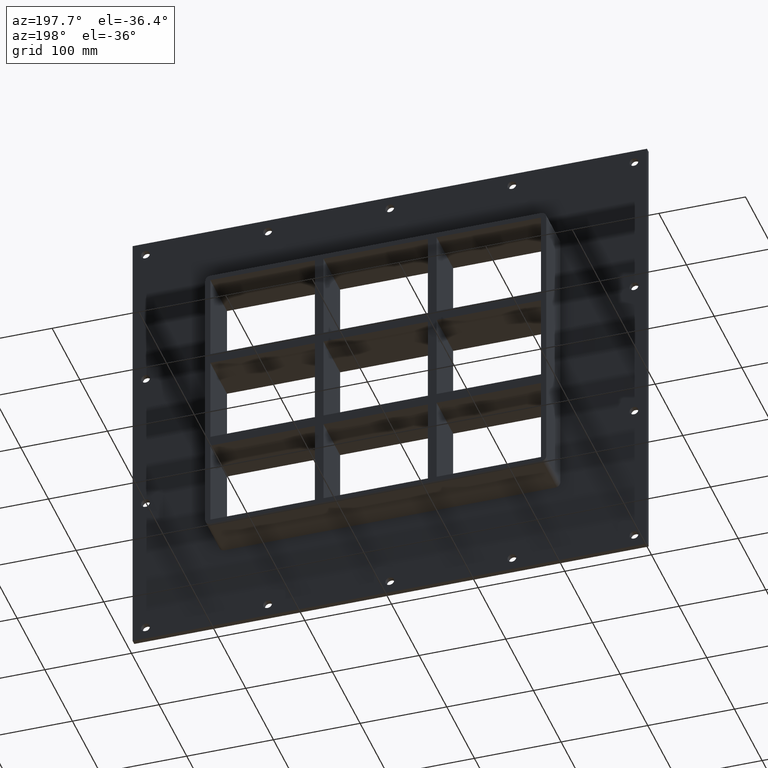
[diagram: clean part render]
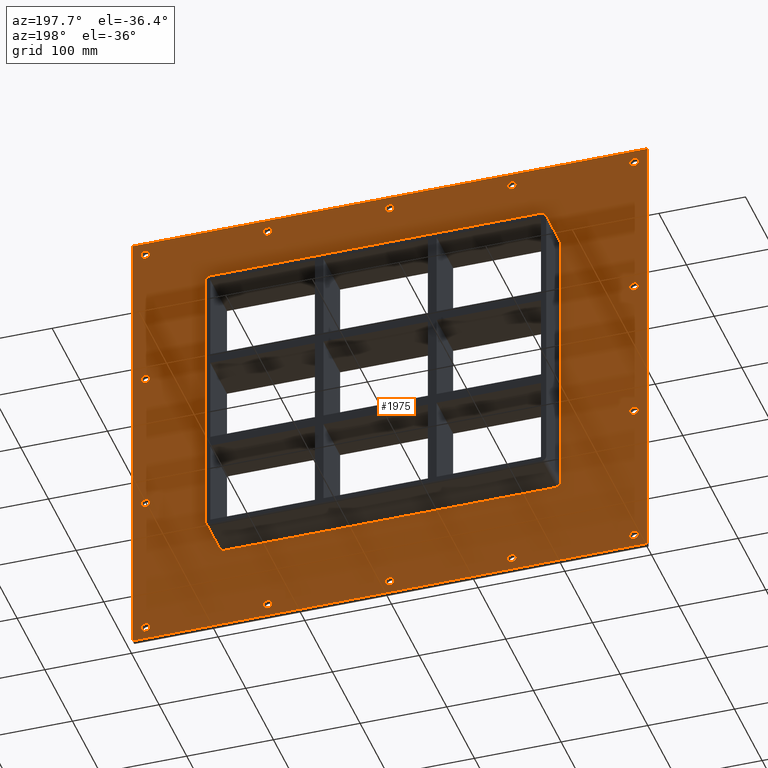
[diagram: same view with one face highlighted and labeled with its STEP entity id]
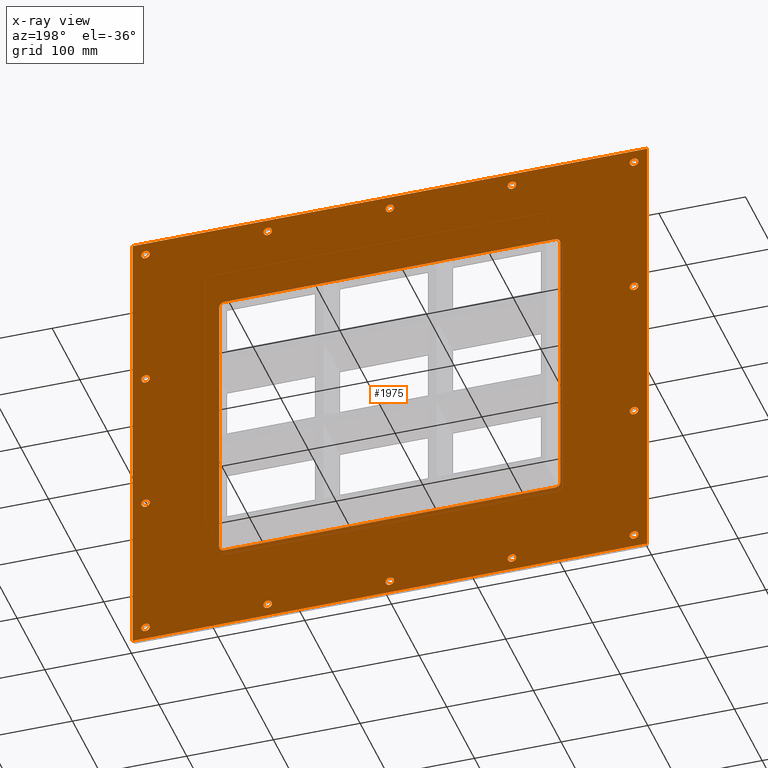
[diagram: x-ray of the same camera — body ghosted, the highlighted face saturated]
A machine part, auxiliary view. The second image highlights one B-rep face of the part: STEP entity #1975.
The next image is the same camera in x-ray: the body ghosted, the highlighted face saturated — about 0% of this face is hidden behind the body in this view.
In plain terms, the highlighted planar face has unit normal (0, 1, 0).
Its self-contained STEP definition (entity closure, byte-faithful):
#73=CARTESIAN_POINT('',(-286.75000000000017,5.999999999999943,-254.5));
#74=VERTEX_POINT('',#73);
#75=CARTESIAN_POINT('',(-281.75000000000017,5.999999999999943,-254.5));
#76=DIRECTION('',(0.0,-1.0,0.0));
#77=DIRECTION('',(1.0,0.0,0.0));
#78=AXIS2_PLACEMENT_3D('',#75,#76,#77);
#79=CIRCLE('',#78,5.0);
#80=EDGE_CURVE('',#74,#74,#79,.T.);
#101=CARTESIAN_POINT('',(276.84999999999991,5.999999999999943,-84.800000000000011));
#102=VERTEX_POINT('',#101);
#103=CARTESIAN_POINT('',(281.84999999999991,5.999999999999943,-84.800000000000011));
#104=DIRECTION('',(0.0,-1.0,0.0));
#105=DIRECTION('',(1.0,0.0,0.0));
#106=AXIS2_PLACEMENT_3D('',#103,#104,#105);
#107=CIRCLE('',#106,5.0);
#108=EDGE_CURVE('',#102,#102,#107,.T.);
#129=CARTESIAN_POINT('',(-286.75000000000017,5.999999999999943,-84.800000000000011));
#130=VERTEX_POINT('',#129);
#131=CARTESIAN_POINT('',(-281.75000000000017,5.999999999999943,-84.800000000000011));
#132=DIRECTION('',(0.0,-1.0,0.0));
#133=DIRECTION('',(1.0,0.0,0.0));
#134=AXIS2_PLACEMENT_3D('',#131,#132,#133);
#135=CIRCLE('',#134,5.0);
#136=EDGE_CURVE('',#130,#130,#135,.T.);
#157=CARTESIAN_POINT('',(276.84999999999991,5.999999999999943,84.899999999999977));
#158=VERTEX_POINT('',#157);
#159=CARTESIAN_POINT('',(281.84999999999991,5.999999999999943,84.899999999999977));
#160=DIRECTION('',(0.0,-1.0,0.0));
#161=DIRECTION('',(1.0,0.0,0.0));
#162=AXIS2_PLACEMENT_3D('',#159,#160,#161);
#163=CIRCLE('',#162,5.0);
#164=EDGE_CURVE('',#158,#158,#163,.T.);
#185=CARTESIAN_POINT('',(-286.75000000000017,5.999999999999943,84.899999999999977));
#186=VERTEX_POINT('',#185);
#187=CARTESIAN_POINT('',(-281.75000000000017,5.999999999999943,84.899999999999977));
#188=DIRECTION('',(0.0,-1.0,0.0));
#189=DIRECTION('',(1.0,0.0,0.0));
#190=AXIS2_PLACEMENT_3D('',#187,#188,#189);
#191=CIRCLE('',#190,5.0);
#192=EDGE_CURVE('',#186,#186,#191,.T.);
#213=CARTESIAN_POINT('',(-145.85000000000014,5.999999999999943,254.59999999999997));
#214=VERTEX_POINT('',#213);
#215=CARTESIAN_POINT('',(-140.85000000000014,5.999999999999943,254.59999999999997));
#216=DIRECTION('',(0.0,-1.0,0.0));
#217=DIRECTION('',(1.0,0.0,0.0));
#218=AXIS2_PLACEMENT_3D('',#215,#216,#217);
#219=CIRCLE('',#218,5.0);
#220=EDGE_CURVE('',#214,#214,#219,.T.);
#241=CARTESIAN_POINT('',(-145.85000000000014,5.999999999999943,-254.50000000000003));
#242=VERTEX_POINT('',#241);
#243=CARTESIAN_POINT('',(-140.85000000000014,5.999999999999943,-254.50000000000003));
#244=DIRECTION('',(0.0,-1.0,0.0));
#245=DIRECTION('',(1.0,0.0,0.0));
#246=AXIS2_PLACEMENT_3D('',#243,#244,#245);
#247=CIRCLE('',#246,5.0);
#248=EDGE_CURVE('',#242,#242,#247,.T.);
#269=CARTESIAN_POINT('',(-4.950000000000152,5.999999999999943,254.59999999999997));
#270=VERTEX_POINT('',#269);
#271=CARTESIAN_POINT('',(0.049999999999848,5.999999999999943,254.59999999999997));
#272=DIRECTION('',(0.0,-1.0,0.0));
#273=DIRECTION('',(1.0,0.0,0.0));
#274=AXIS2_PLACEMENT_3D('',#271,#272,#273);
#275=CIRCLE('',#274,5.0);
#276=EDGE_CURVE('',#270,#270,#275,.T.);
#297=CARTESIAN_POINT('',(-4.950000000000152,5.999999999999943,-254.50000000000003));
#298=VERTEX_POINT('',#297);
#299=CARTESIAN_POINT('',(0.049999999999848,5.999999999999943,-254.50000000000003));
#300=DIRECTION('',(0.0,-1.0,0.0));
#301=DIRECTION('',(1.0,0.0,0.0));
#302=AXIS2_PLACEMENT_3D('',#299,#300,#301);
#303=CIRCLE('',#302,5.0);
#304=EDGE_CURVE('',#298,#298,#303,.T.);
#325=CARTESIAN_POINT('',(135.94999999999987,5.999999999999943,254.59999999999997));
#326=VERTEX_POINT('',#325);
#327=CARTESIAN_POINT('',(140.94999999999987,5.999999999999943,254.59999999999997));
#328=DIRECTION('',(0.0,-1.0,0.0));
#329=DIRECTION('',(1.0,0.0,0.0));
#330=AXIS2_PLACEMENT_3D('',#327,#328,#329);
#331=CIRCLE('',#330,5.0);
#332=EDGE_CURVE('',#326,#326,#331,.T.);
#353=CARTESIAN_POINT('',(135.94999999999987,5.999999999999943,-254.50000000000003));
#354=VERTEX_POINT('',#353);
#355=CARTESIAN_POINT('',(140.94999999999987,5.999999999999943,-254.50000000000003));
#356=DIRECTION('',(0.0,-1.0,0.0));
#357=DIRECTION('',(1.0,0.0,0.0));
#358=AXIS2_PLACEMENT_3D('',#355,#356,#357);
#359=CIRCLE('',#358,5.0);
#360=EDGE_CURVE('',#354,#354,#359,.T.);
#381=CARTESIAN_POINT('',(276.84999999999991,5.999999999999943,-254.50000000000003));
#382=VERTEX_POINT('',#381);
#383=CARTESIAN_POINT('',(281.84999999999991,5.999999999999943,-254.50000000000003));
#384=DIRECTION('',(0.0,-1.0,0.0));
#385=DIRECTION('',(1.0,0.0,0.0));
#386=AXIS2_PLACEMENT_3D('',#383,#384,#385);
#387=CIRCLE('',#386,5.0);
#388=EDGE_CURVE('',#382,#382,#387,.T.);
#409=CARTESIAN_POINT('',(-286.75000000000017,5.999999999999943,254.59999999999997));
#410=VERTEX_POINT('',#409);
#411=CARTESIAN_POINT('',(-281.75000000000017,5.999999999999943,254.59999999999997));
#412=DIRECTION('',(0.0,-1.0,0.0));
#413=DIRECTION('',(1.0,0.0,0.0));
#414=AXIS2_PLACEMENT_3D('',#411,#412,#413);
#415=CIRCLE('',#414,5.0);
#416=EDGE_CURVE('',#410,#410,#415,.T.);
#437=CARTESIAN_POINT('',(276.84999999999991,5.999999999999943,254.59999999999997));
#438=VERTEX_POINT('',#437);
#439=CARTESIAN_POINT('',(281.84999999999991,5.999999999999943,254.59999999999997));
#440=DIRECTION('',(0.0,-1.0,0.0));
#441=DIRECTION('',(1.0,0.0,0.0));
#442=AXIS2_PLACEMENT_3D('',#439,#440,#441);
#443=CIRCLE('',#442,5.0);
#444=EDGE_CURVE('',#438,#438,#443,.T.);
#1824=CARTESIAN_POINT('',(-3.011572E-014,6.000000000000001,0.0));
#1825=DIRECTION('',(0.0,1.0,0.0));
#1826=DIRECTION('',(0.0,0.0,1.0));
#1827=AXIS2_PLACEMENT_3D('',#1824,#1825,#1826);
#1828=PLANE('',#1827);
#1829=CARTESIAN_POINT('',(-296.75000000000011,6.000000000000001,269.5));
#1830=VERTEX_POINT('',#1829);
#1831=CARTESIAN_POINT('',(296.75000000000011,6.000000000000001,269.5));
#1832=VERTEX_POINT('',#1831);
#1833=CARTESIAN_POINT('',(-296.75000000000011,6.000000000000001,269.5));
#1834=DIRECTION('',(1.0,0.0,0.0));
#1835=VECTOR('',#1834,593.50000000000023);
#1836=LINE('',#1833,#1835);
#1837=EDGE_CURVE('',#1830,#1832,#1836,.T.);
#1838=ORIENTED_EDGE('',*,*,#1837,.T.);
#1839=CARTESIAN_POINT('',(296.75000000000011,6.000000000000001,-269.5));
#1840=VERTEX_POINT('',#1839);
#1841=CARTESIAN_POINT('',(296.75000000000006,6.000000000000001,269.5));
#1842=DIRECTION('',(0.0,0.0,-1.0));
#1843=VECTOR('',#1842,539.0);
#1844=LINE('',#1841,#1843);
#1845=EDGE_CURVE('',#1832,#1840,#1844,.T.);
#1846=ORIENTED_EDGE('',*,*,#1845,.T.);
#1847=CARTESIAN_POINT('',(-296.75000000000011,6.000000000000001,-269.5));
#1848=VERTEX_POINT('',#1847);
#1849=CARTESIAN_POINT('',(296.75000000000006,6.000000000000001,-269.5));
#1850=DIRECTION('',(-1.0,0.0,0.0));
#1851=VECTOR('',#1850,593.50000000000023);
#1852=LINE('',#1849,#1851);
#1853=EDGE_CURVE('',#1840,#1848,#1852,.T.);
#1854=ORIENTED_EDGE('',*,*,#1853,.T.);
#1855=CARTESIAN_POINT('',(-296.75000000000011,6.000000000000001,-269.5));
#1856=DIRECTION('',(0.0,0.0,1.0));
#1857=VECTOR('',#1856,539.0);
#1858=LINE('',#1855,#1857);
#1859=EDGE_CURVE('',#1848,#1830,#1858,.T.);
#1860=ORIENTED_EDGE('',*,*,#1859,.T.);
#1861=EDGE_LOOP('',(#1838,#1846,#1854,#1860));
#1862=FACE_OUTER_BOUND('',#1861,.T.);
#1863=ORIENTED_EDGE('',*,*,#80,.T.);
#1864=EDGE_LOOP('',(#1863));
#1865=FACE_BOUND('',#1864,.T.);
#1866=ORIENTED_EDGE('',*,*,#108,.T.);
#1867=EDGE_LOOP('',(#1866));
#1868=FACE_BOUND('',#1867,.T.);
#1869=ORIENTED_EDGE('',*,*,#136,.T.);
#1870=EDGE_LOOP('',(#1869));
#1871=FACE_BOUND('',#1870,.T.);
#1872=ORIENTED_EDGE('',*,*,#164,.T.);
#1873=EDGE_LOOP('',(#1872));
#1874=FACE_BOUND('',#1873,.T.);
#1875=ORIENTED_EDGE('',*,*,#192,.T.);
#1876=EDGE_LOOP('',(#1875));
#1877=FACE_BOUND('',#1876,.T.);
#1878=ORIENTED_EDGE('',*,*,#220,.T.);
#1879=EDGE_LOOP('',(#1878));
#1880=FACE_BOUND('',#1879,.T.);
#1881=ORIENTED_EDGE('',*,*,#248,.T.);
#1882=EDGE_LOOP('',(#1881));
#1883=FACE_BOUND('',#1882,.T.);
#1884=ORIENTED_EDGE('',*,*,#276,.T.);
#1885=EDGE_LOOP('',(#1884));
#1886=FACE_BOUND('',#1885,.T.);
#1887=ORIENTED_EDGE('',*,*,#304,.T.);
#1888=EDGE_LOOP('',(#1887));
#1889=FACE_BOUND('',#1888,.T.);
#1890=ORIENTED_EDGE('',*,*,#332,.T.);
#1891=EDGE_LOOP('',(#1890));
#1892=FACE_BOUND('',#1891,.T.);
#1893=ORIENTED_EDGE('',*,*,#360,.T.);
#1894=EDGE_LOOP('',(#1893));
#1895=FACE_BOUND('',#1894,.T.);
#1896=ORIENTED_EDGE('',*,*,#388,.T.);
#1897=EDGE_LOOP('',(#1896));
#1898=FACE_BOUND('',#1897,.T.);
#1899=ORIENTED_EDGE('',*,*,#416,.T.);
#1900=EDGE_LOOP('',(#1899));
#1901=FACE_BOUND('',#1900,.T.);
#1902=ORIENTED_EDGE('',*,*,#444,.T.);
#1903=EDGE_LOOP('',(#1902));
#1904=FACE_BOUND('',#1903,.T.);
#1905=CARTESIAN_POINT('',(-190.75000000000003,6.000000000000001,-169.50000000000003));
#1906=VERTEX_POINT('',#1905);
#1907=CARTESIAN_POINT('',(-196.75000000000006,6.000000000000001,-163.5));
#1908=VERTEX_POINT('',#1907);
#1909=CARTESIAN_POINT('',(-190.75000000000003,6.000000000000001,-163.5));
#1910=DIRECTION('',(0.0,1.0,0.0));
#1911=DIRECTION('',(-0.707106781186548,0.0,-0.707106781186548));
#1912=AXIS2_PLACEMENT_3D('',#1909,#1910,#1911);
#1913=CIRCLE('',#1912,6.000000000000002);
#1914=EDGE_CURVE('',#1906,#1908,#1913,.T.);
#1915=ORIENTED_EDGE('',*,*,#1914,.F.);
#1916=CARTESIAN_POINT('',(190.75000000000003,6.000000000000001,-169.50000000000003));
#1917=VERTEX_POINT('',#1916);
#1918=CARTESIAN_POINT('',(190.75000000000003,6.000000000000001,-169.50000000000003));
#1919=DIRECTION('',(-1.0,0.0,0.0));
#1920=VECTOR('',#1919,381.5);
#1921=LINE('',#1918,#1920);
#1922=EDGE_CURVE('',#1917,#1906,#1921,.T.);
#1923=ORIENTED_EDGE('',*,*,#1922,.F.);
#1924=CARTESIAN_POINT('',(196.75000000000006,6.000000000000001,-163.5));
#1925=VERTEX_POINT('',#1924);
#1926=CARTESIAN_POINT('',(190.75000000000003,6.000000000000001,-163.5));
#1927=DIRECTION('',(0.0,1.0,0.0));
#1928=DIRECTION('',(0.707106781186548,0.0,-0.707106781186548));
#1929=AXIS2_PLACEMENT_3D('',#1926,#1927,#1928);
#1930=CIRCLE('',#1929,6.000000000000002);
#1931=EDGE_CURVE('',#1925,#1917,#1930,.T.);
#1932=ORIENTED_EDGE('',*,*,#1931,.F.);
#1933=CARTESIAN_POINT('',(196.75000000000006,6.000000000000001,163.5));
#1934=VERTEX_POINT('',#1933);
#1935=CARTESIAN_POINT('',(196.75000000000006,6.000000000000001,163.5));
#1936=DIRECTION('',(0.0,0.0,-1.0));
#1937=VECTOR('',#1936,327.0);
#1938=LINE('',#1935,#1937);
#1939=EDGE_CURVE('',#1934,#1925,#1938,.T.);
#1940=ORIENTED_EDGE('',*,*,#1939,.F.);
#1941=CARTESIAN_POINT('',(190.75000000000003,6.000000000000001,169.50000000000003));
#1942=VERTEX_POINT('',#1941);
#1943=CARTESIAN_POINT('',(190.75000000000003,6.000000000000001,163.5));
#1944=DIRECTION('',(0.0,1.0,0.0));
#1945=DIRECTION('',(0.707106781186548,0.0,0.707106781186548));
#1946=AXIS2_PLACEMENT_3D('',#1943,#1944,#1945);
#1947=CIRCLE('',#1946,6.000000000000002);
#1948=EDGE_CURVE('',#1942,#1934,#1947,.T.);
#1949=ORIENTED_EDGE('',*,*,#1948,.F.);
#1950=CARTESIAN_POINT('',(-190.75000000000003,6.000000000000001,169.50000000000003));
#1951=VERTEX_POINT('',#1950);
#1952=CARTESIAN_POINT('',(-190.75000000000003,6.000000000000001,169.50000000000003));
#1953=DIRECTION('',(1.0,0.0,0.0));
#1954=VECTOR('',#1953,381.50000000000011);
#1955=LINE('',#1952,#1954);
#1956=EDGE_CURVE('',#1951,#1942,#1955,.T.);
#1957=ORIENTED_EDGE('',*,*,#1956,.F.);
#1958=CARTESIAN_POINT('',(-196.75000000000006,6.000000000000001,163.5));
#1959=VERTEX_POINT('',#1958);
#1960=CARTESIAN_POINT('',(-190.75000000000003,6.000000000000001,163.5));
#1961=DIRECTION('',(0.0,1.0,0.0));
#1962=DIRECTION('',(-0.707106781186548,0.0,0.707106781186548));
#1963=AXIS2_PLACEMENT_3D('',#1960,#1961,#1962);
#1964=CIRCLE('',#1963,6.000000000000002);
#1965=EDGE_CURVE('',#1959,#1951,#1964,.T.);
#1966=ORIENTED_EDGE('',*,*,#1965,.F.);
#1967=CARTESIAN_POINT('',(-196.75000000000006,6.000000000000001,-163.5));
#1968=DIRECTION('',(0.0,0.0,1.0));
#1969=VECTOR('',#1968,327.0);
#1970=LINE('',#1967,#1969);
#1971=EDGE_CURVE('',#1908,#1959,#1970,.T.);
#1972=ORIENTED_EDGE('',*,*,#1971,.F.);
#1973=EDGE_LOOP('',(#1915,#1923,#1932,#1940,#1949,#1957,#1966,#1972));
#1974=FACE_BOUND('',#1973,.T.);
#1975=ADVANCED_FACE('',(#1862,#1865,#1868,#1871,#1874,#1877,#1880,#1883,#1886,#1889,#1892,#1895,#1898,#1901,#1904,#1974),#1828,.T.);